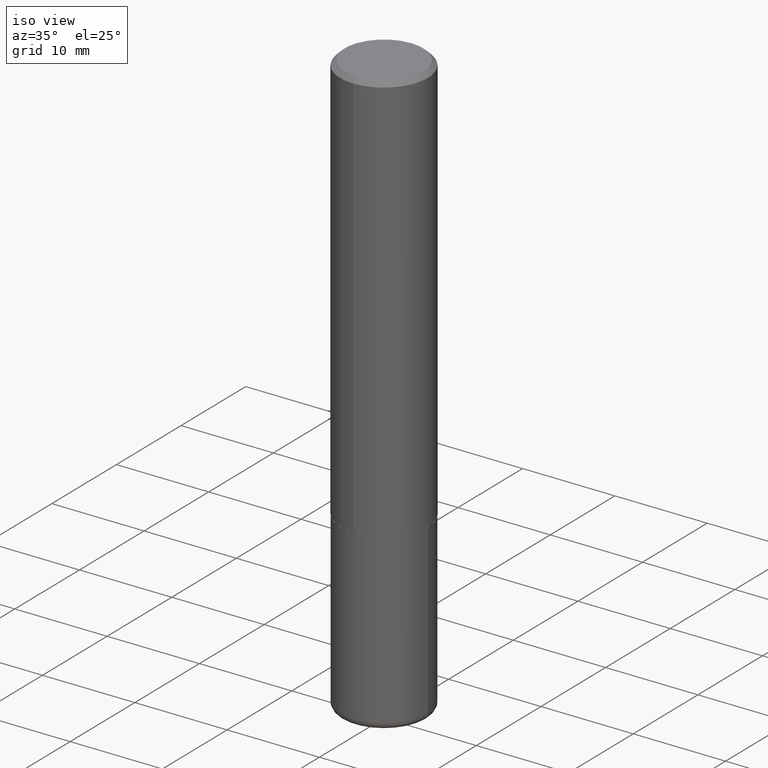
[diagram: clean part render]
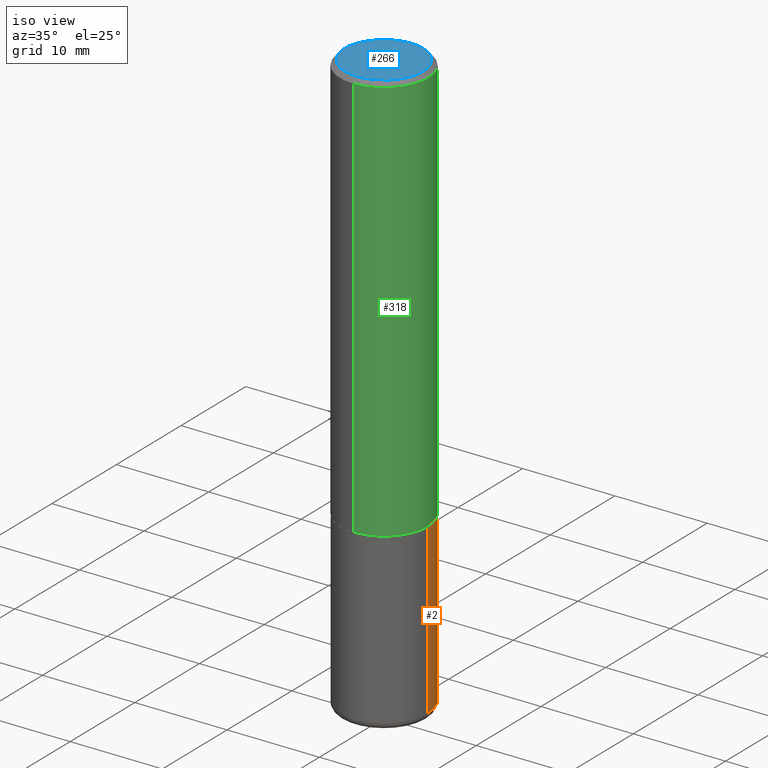
[diagram: same view with three faces highlighted in distinct colors, each labeled with its STEP entity id]
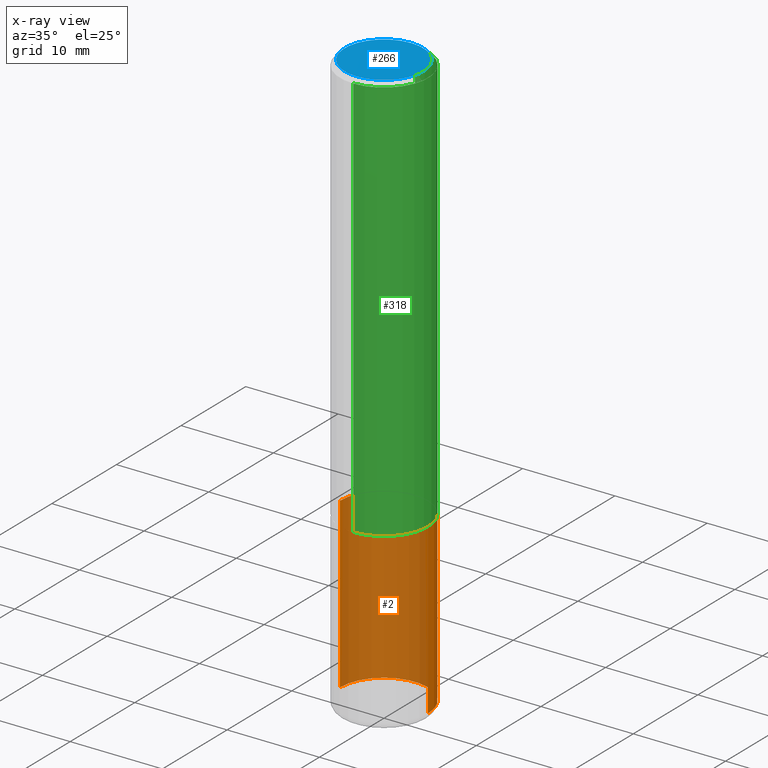
[diagram: x-ray of the same camera — body ghosted, the three highlighted faces saturated]
A machine part, iso view with three faces highlighted in distinct colors.
The next image is the same camera in x-ray (body ghosted, the three faces saturated) — at least one of them is partly hidden behind the body in this view.
Their STEP definitions:

[orange] entity #2 — the highlighted cylindrical surface (partial cylindrical patch) has radius 4.7625 mm, axis along (-0, 0, 1).
#2 = ADVANCED_FACE ( 'NONE', ( #392 ), #386, .T. ) ;
#10 = CARTESIAN_POINT ( 'NONE',  ( 0.1875000000000000555, -9.933264409008746581E-15, -2.470000000000000195 ) ) ;
#12 = DIRECTION ( 'NONE',  ( -2.445468806185136597E-29, 3.491481338843145583E-15, 1.000000000000000000 ) ) ;
#22 = ORIENTED_EDGE ( 'NONE', *, *, #220, .T. ) ;
#54 = LINE ( 'NONE', #162, #238 ) ;
#67 = DIRECTION ( 'NONE',  ( -2.445468806185136877E-29, 3.491481338843145188E-15, 1.000000000000000000 ) ) ;
#80 = ORIENTED_EDGE ( 'NONE', *, *, #245, .T. ) ;
#83 = EDGE_CURVE ( 'NONE', #207, #409, #54, .T. ) ;
#88 = VERTEX_POINT ( 'NONE', #290 ) ;
#100 = VECTOR ( 'NONE', #67, 39.37007874015748143 ) ;
#110 = AXIS2_PLACEMENT_3D ( 'NONE', #188, #291, #230 ) ;
#112 = VERTEX_POINT ( 'NONE', #294 ) ;
#144 = CARTESIAN_POINT ( 'NONE',  ( 0.1875000000000000278, -7.419397845041680468E-15, -1.750000000000000222 ) ) ;
#145 = ORIENTED_EDGE ( 'NONE', *, *, #83, .F. ) ;
#154 = DIRECTION ( 'NONE',  ( -2.445468806185136877E-29, 3.491481338843145188E-15, 1.000000000000000000 ) ) ;
#160 = ORIENTED_EDGE ( 'NONE', *, *, #272, .F. ) ;
#162 = CARTESIAN_POINT ( 'NONE',  ( 0.1875000000000000555, -1.309305502066175205E-15, 9.142831454617382414E-30 ) ) ;
#170 = DIRECTION ( 'NONE',  ( 1.000000000000000000, -6.982962677686265922E-15, 0.000000000000000000 ) ) ;
#184 = AXIS2_PLACEMENT_3D ( 'NONE', #302, #12, #296 ) ;
#188 = CARTESIAN_POINT ( 'NONE',  ( 0.000000000000000000, 0.000000000000000000, 0.000000000000000000 ) ) ;
#207 = VERTEX_POINT ( 'NONE', #10 ) ;
#218 = CIRCLE ( 'NONE', #184, 0.1875000000000000278 ) ;
#220 = EDGE_CURVE ( 'NONE', #207, #88, #288, .T. ) ;
#230 = DIRECTION ( 'NONE',  ( 1.000000000000000000, -6.982962677686265922E-15, 4.876176775795935793E-29 ) ) ;
#235 = DIRECTION ( 'NONE',  ( -2.445468806185136597E-29, 3.491481338843145583E-15, 1.000000000000000000 ) ) ;
#238 = VECTOR ( 'NONE', #154, 39.37007874015748143 ) ;
#245 = EDGE_CURVE ( 'NONE', #88, #112, #368, .T. ) ;
#271 = CARTESIAN_POINT ( 'NONE',  ( 6.040307951277287977E-29, -8.623958906942569995E-15, -2.470000000000000195 ) ) ;
#272 = EDGE_CURVE ( 'NONE', #409, #112, #218, .T. ) ;
#288 = CIRCLE ( 'NONE', #306, 0.1875000000000000555 ) ;
#290 = CARTESIAN_POINT ( 'NONE',  ( -0.1875000000000000555, -7.291691277392382147E-15, -2.470000000000000195 ) ) ;
#291 = DIRECTION ( 'NONE',  ( -2.445468806185136597E-29, 3.491481338843145583E-15, 1.000000000000000000 ) ) ;
#294 = CARTESIAN_POINT ( 'NONE',  ( -0.1875000000000000278, -6.034757995408849879E-15, -1.750000000000000222 ) ) ;
#296 = DIRECTION ( 'NONE',  ( 1.000000000000000000, -6.982962677686266711E-15, 0.000000000000000000 ) ) ;
#300 = CARTESIAN_POINT ( 'NONE',  ( -0.1875000000000000555, 1.332267629550188243E-15, -9.223003294227950793E-30 ) ) ;
#302 = CARTESIAN_POINT ( 'NONE',  ( 4.279570410823989044E-29, -6.110092342975505460E-15, -1.750000000000000222 ) ) ;
#306 = AXIS2_PLACEMENT_3D ( 'NONE', #271, #235, #170 ) ;
#348 = EDGE_LOOP ( 'NONE', ( #22, #80, #160, #145 ) ) ;
#368 = LINE ( 'NONE', #300, #100 ) ;
#386 = CYLINDRICAL_SURFACE ( 'NONE', #110, 0.1875000000000000555 ) ;
#392 = FACE_OUTER_BOUND ( 'NONE', #348, .T. ) ;
#409 = VERTEX_POINT ( 'NONE', #144 ) ;

[blue] entity #266 — the highlighted planar face has unit normal (0, -0, -1).
#36 = DIRECTION ( 'NONE',  ( 2.444650961945200538E-29, -3.492652538343536856E-15, -1.000000000000000000 ) ) ;
#51 = VERTEX_POINT ( 'NONE', #357 ) ;
#82 = VERTEX_POINT ( 'NONE', #325 ) ;
#99 = FACE_OUTER_BOUND ( 'NONE', #150, .T. ) ;
#119 = AXIS2_PLACEMENT_3D ( 'NONE', #233, #297, #270 ) ;
#133 = PLANE ( 'NONE',  #141 ) ;
#141 = AXIS2_PLACEMENT_3D ( 'NONE', #200, #36, #269 ) ;
#150 = EDGE_LOOP ( 'NONE', ( #305, #255 ) ) ;
#168 = CARTESIAN_POINT ( 'NONE',  ( 5.943167387624159977E-45, -8.490953917474353626E-31, -2.431090360194079171E-16 ) ) ;
#200 = CARTESIAN_POINT ( 'NONE',  ( 1.169646248512450976E-15, 0.1675000000000002320, -7.065738181822472063E-16 ) ) ;
#203 = CIRCLE ( 'NONE', #119, 0.1675000000000002320 ) ;
#231 = EDGE_CURVE ( 'NONE', #51, #82, #299, .T. ) ;
#232 = DIRECTION ( 'NONE',  ( -2.444650961945200818E-29, 3.492652538343536856E-15, 1.000000000000000000 ) ) ;
#233 = CARTESIAN_POINT ( 'NONE',  ( 5.943167387624159977E-45, -8.490953917474353626E-31, -2.431090360194079171E-16 ) ) ;
#252 = AXIS2_PLACEMENT_3D ( 'NONE', #168, #232, #265 ) ;
#255 = ORIENTED_EDGE ( 'NONE', *, *, #231, .T. ) ;
#265 = DIRECTION ( 'NONE',  ( -6.982962677686265133E-15, -1.000000000000000000, 3.492652538343536856E-15 ) ) ;
#266 = ADVANCED_FACE ( 'NONE', ( #99 ), #133, .F. ) ;
#269 = DIRECTION ( 'NONE',  ( 6.982962677686265922E-15, 1.000000000000000000, -3.492652538343536856E-15 ) ) ;
#270 = DIRECTION ( 'NONE',  ( -6.982962677686265133E-15, -1.000000000000000000, 3.492652538343536856E-15 ) ) ;
#283 = EDGE_CURVE ( 'NONE', #82, #51, #203, .T. ) ;
#297 = DIRECTION ( 'NONE',  ( -2.444650961945200818E-29, 3.492652538343536856E-15, 1.000000000000000000 ) ) ;
#299 = CIRCLE ( 'NONE', #252, 0.1675000000000002320 ) ;
#305 = ORIENTED_EDGE ( 'NONE', *, *, #283, .T. ) ;
#325 = CARTESIAN_POINT ( 'NONE',  ( 1.239475875289313091E-15, 0.1675000000000002320, -8.281283361919508936E-16 ) ) ;
#357 = CARTESIAN_POINT ( 'NONE',  ( -1.217738394604447231E-15, -0.1675000000000002320, 3.419102641531351581E-16 ) ) ;

[green] entity #318 — the highlighted cylindrical surface (partial cylindrical patch) has radius 4.7625 mm, axis along (-0, 0, 1).
#5 = EDGE_CURVE ( 'NONE', #122, #214, #298, .T. ) ;
#8 = DIRECTION ( 'NONE',  ( -2.444650961945200818E-29, 3.492652538343536856E-15, 1.000000000000000000 ) ) ;
#19 = CARTESIAN_POINT ( 'NONE',  ( -1.309305502066175797E-15, -0.1875000000000001110, 6.548723509394135303E-16 ) ) ;
#35 = CARTESIAN_POINT ( 'NONE',  ( 4.275694532442156646E-29, -6.108649289562846914E-15, -1.749000000000000110 ) ) ;
#40 = LINE ( 'NONE', #98, #70 ) ;
#46 = DIRECTION ( 'NONE',  ( -2.444650961945200818E-29, 3.492652538343536856E-15, 1.000000000000000000 ) ) ;
#58 = DIRECTION ( 'NONE',  ( -2.444650961945200818E-29, 3.492652538343536856E-15, 1.000000000000000000 ) ) ;
#70 = VECTOR ( 'NONE', #328, 39.37007874015748143 ) ;
#91 = ORIENTED_EDGE ( 'NONE', *, *, #147, .T. ) ;
#98 = CARTESIAN_POINT ( 'NONE',  ( 1.332267629550188440E-15, 0.1875000000000001110, -6.548723509394135303E-16 ) ) ;
#106 = CARTESIAN_POINT ( 'NONE',  ( 1.332267629550210528E-15, 0.1874999999999941713, -1.749000000000000554 ) ) ;
#120 = CARTESIAN_POINT ( 'NONE',  ( -1.286343374582161379E-15, -0.1875000000000000555, -0.01999999999999939673 ) ) ;
#122 = VERTEX_POINT ( 'NONE', #120 ) ;
#128 = AXIS2_PLACEMENT_3D ( 'NONE', #35, #8, #237 ) ;
#147 = EDGE_CURVE ( 'NONE', #340, #378, #246, .T. ) ;
#152 = EDGE_LOOP ( 'NONE', ( #91, #180, #212, #406 ) ) ;
#156 = AXIS2_PLACEMENT_3D ( 'NONE', #249, #46, #344 ) ;
#180 = ORIENTED_EDGE ( 'NONE', *, *, #209, .T. ) ;
#209 = EDGE_CURVE ( 'NONE', #378, #214, #40, .T. ) ;
#212 = ORIENTED_EDGE ( 'NONE', *, *, #5, .F. ) ;
#214 = VERTEX_POINT ( 'NONE', #393 ) ;
#237 = DIRECTION ( 'NONE',  ( -6.982962677686266711E-15, -1.000000000000000000, 2.913971193241876428E-15 ) ) ;
#241 = CYLINDRICAL_SURFACE ( 'NONE', #156, 0.1875000000000001110 ) ;
#246 = CIRCLE ( 'NONE', #128, 0.1875000000000002776 ) ;
#249 = CARTESIAN_POINT ( 'NONE',  ( 0.000000000000000000, 0.000000000000000000, 0.000000000000000000 ) ) ;
#298 = CIRCLE ( 'NONE', #353, 0.1874999999999999722 ) ;
#317 = DIRECTION ( 'NONE',  ( -6.982962677686266711E-15, -1.000000000000000000, 3.483106191921935949E-15 ) ) ;
#318 = ADVANCED_FACE ( 'NONE', ( #341 ), #241, .T. ) ;
#328 = DIRECTION ( 'NONE',  ( -2.444650961945200818E-29, 3.492652538343536856E-15, 1.000000000000000000 ) ) ;
#331 = VECTOR ( 'NONE', #339, 39.37007874015748143 ) ;
#339 = DIRECTION ( 'NONE',  ( -2.444650961945200818E-29, 3.492652538343536856E-15, 1.000000000000000000 ) ) ;
#340 = VERTEX_POINT ( 'NONE', #371 ) ;
#341 = FACE_OUTER_BOUND ( 'NONE', #152, .T. ) ;
#344 = DIRECTION ( 'NONE',  ( -6.982962677686266711E-15, -1.000000000000000000, 3.492652538343536856E-15 ) ) ;
#353 = AXIS2_PLACEMENT_3D ( 'NONE', #384, #58, #317 ) ;
#364 = EDGE_CURVE ( 'NONE', #340, #122, #403, .T. ) ;
#371 = CARTESIAN_POINT ( 'NONE',  ( -1.309305502066134185E-15, -0.1875000000000064115, -1.748999999999999666 ) ) ;
#378 = VERTEX_POINT ( 'NONE', #106 ) ;
#384 = CARTESIAN_POINT ( 'NONE',  ( 4.889301923890413792E-31, -6.985305076687091116E-17, -0.02000000000000005246 ) ) ;
#393 = CARTESIAN_POINT ( 'NONE',  ( 1.309305502066175205E-15, 0.1874999999999999167, -0.02000000000000070471 ) ) ;
#403 = LINE ( 'NONE', #19, #331 ) ;
#406 = ORIENTED_EDGE ( 'NONE', *, *, #364, .F. ) ;